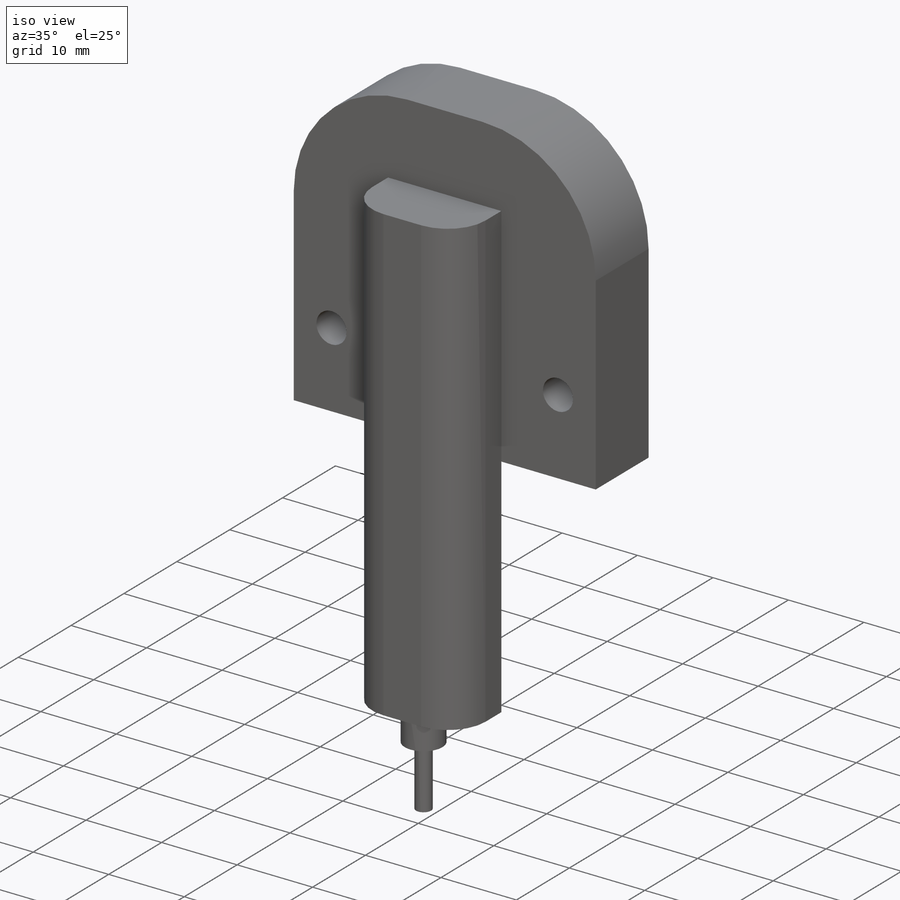
[diagram: iso view]
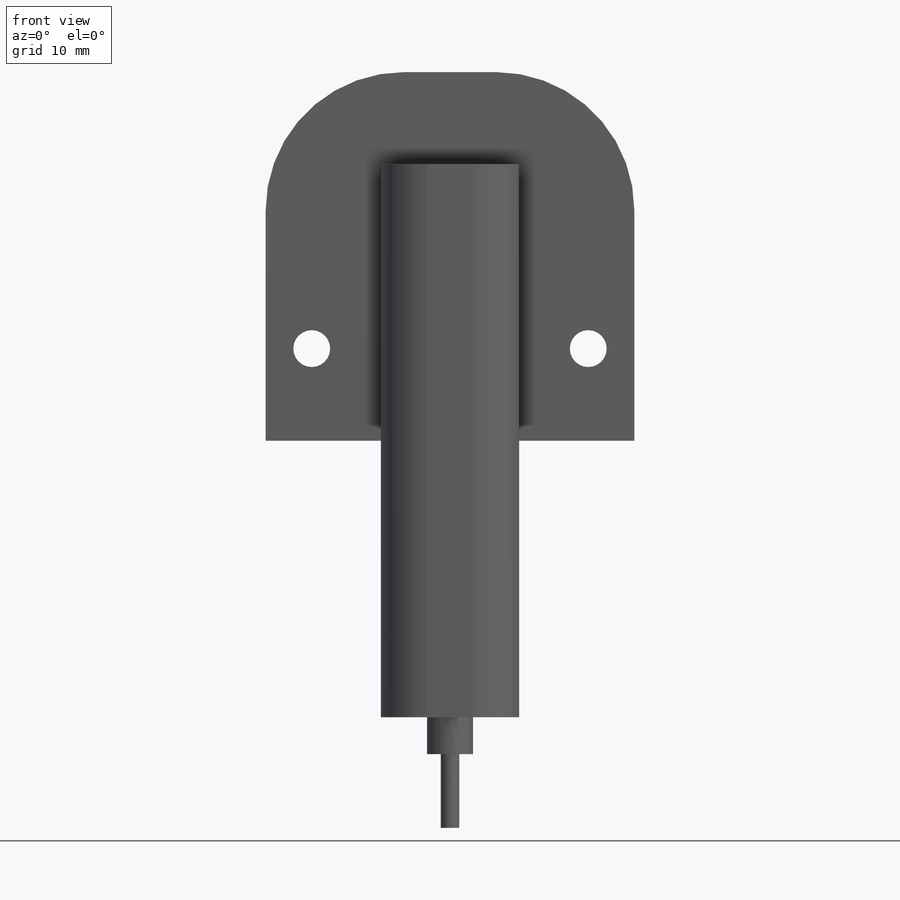
[diagram: front view]
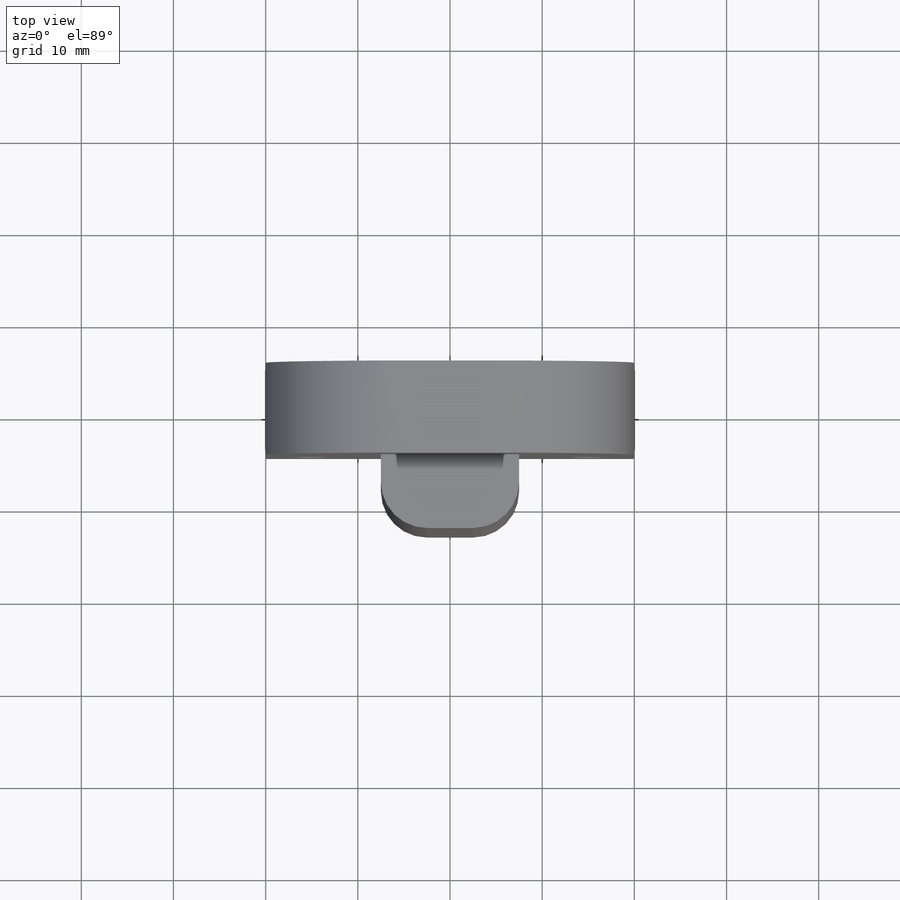
[diagram: top view]
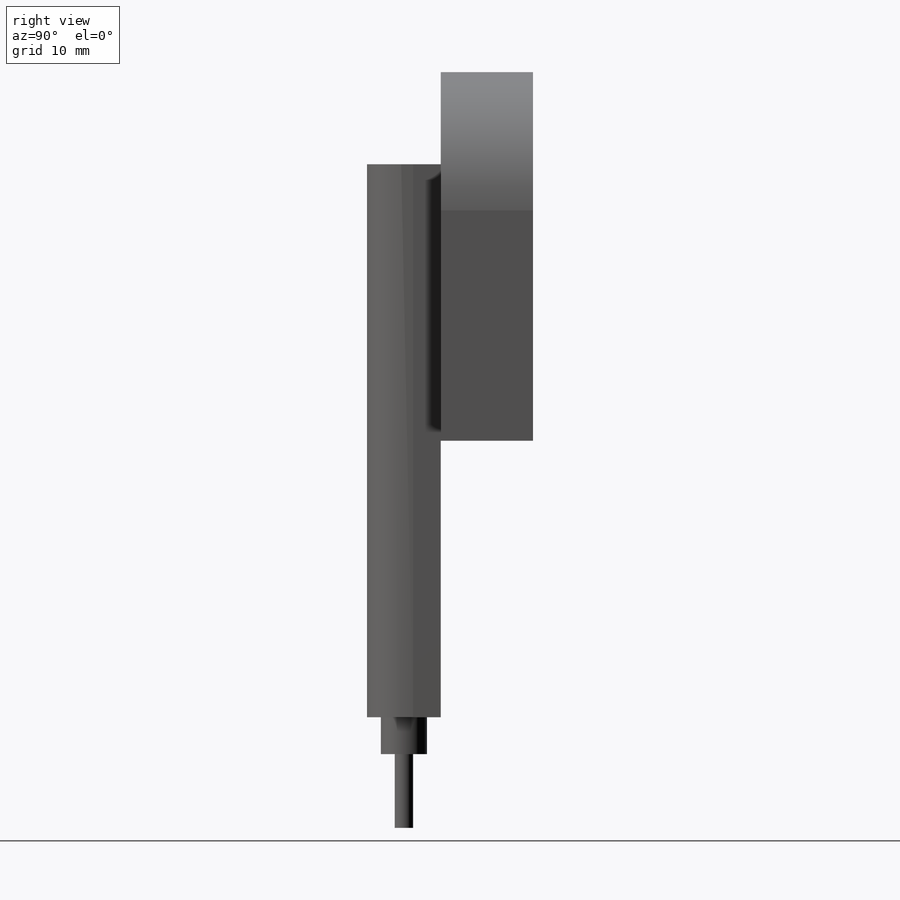
[diagram: right view]
SOLIDWORKS PART (.sldprt)
format: sldprt  version: not decoded by parser v0  size: 196,096 bytes
history: native  units: mm
features: sketch x5, extrude x4, fillet x2, material x1, cut_extrude x1 (+13 scaffold rows collapsed)
feature tree (26):
  scaffold x13  (default folders/planes/origin — collapsed)
  material  "Material <not specified>"
  sketch  "Sketch1"  dims[D1=10.0mm D2=40.0mm]
  extrude  "Boss-Extrude1"  Depth=40mm
  fillet  "Fillet1"  Radius=15mm
  sketch  "Sketch3"  dims[D1=4.0mm D4=4.0mm D2=5.0mm D3=10.0mm D5=5.0mm]
  cut_extrude  "Cut-Extrude1"  Depth=10mm
  sketch  "Sketch7"  dims[D1=15.0mm D2=60.0mm]
  extrude  "Boss-Extrude5"  Depth=8mm
  sketch  "Sketch8"  dims[D3=5.0mm D1=4.0mm D2=7.5mm]
  extrude  "Boss-Extrude6"  Depth=4mm
  sketch  "Sketch9"  dims[D1=2.0mm]
  extrude  "Boss-Extrude7"  Depth=8mm
  fillet  "Fillet3"  Radius=5mm
decode coverage: 12 of 12 modeling features carry decoded parameters
note: suppression state not decoded; provenance and decode notes live in map.json
